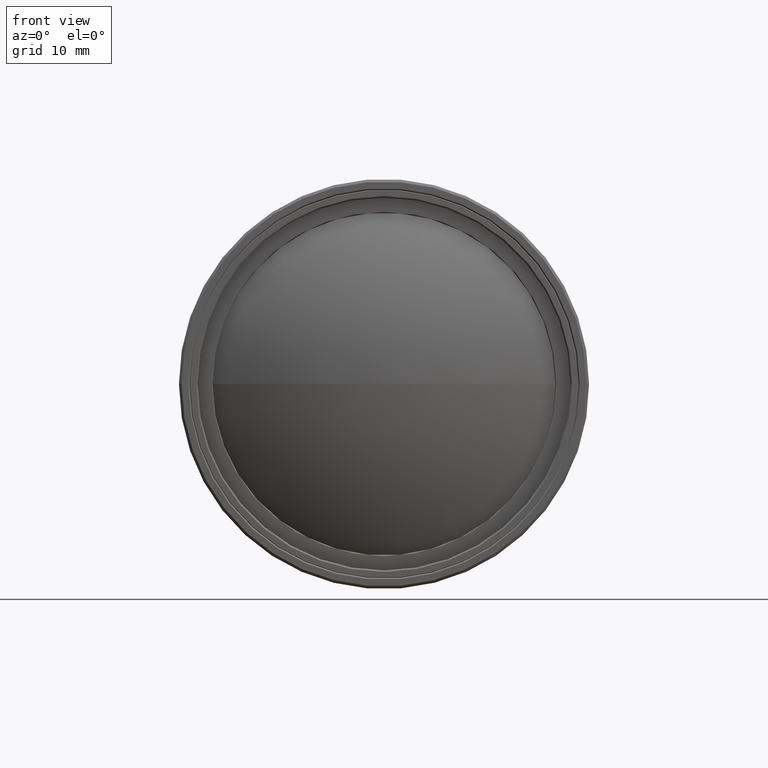
[diagram: clean part render]
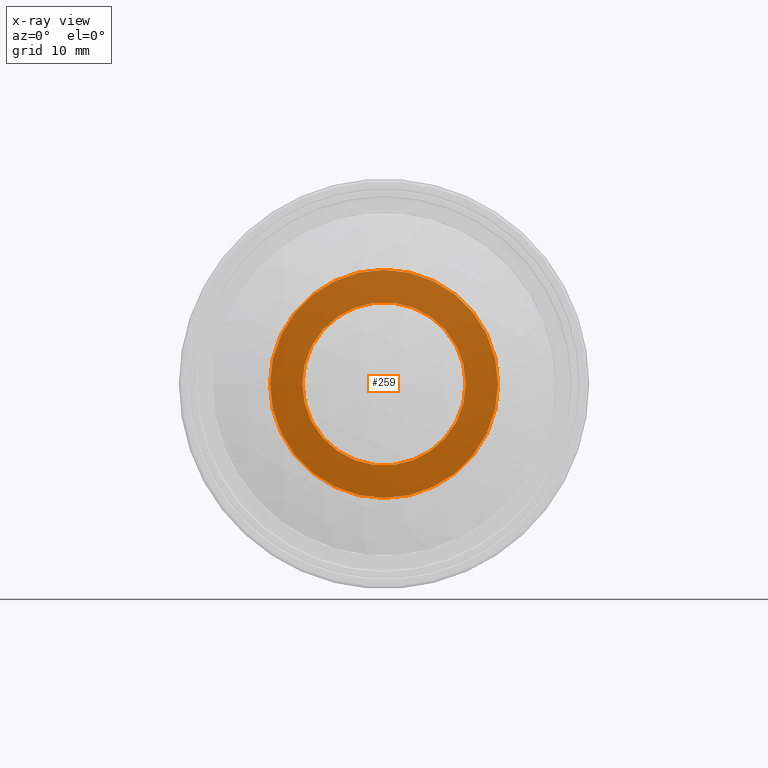
[diagram: x-ray — body ghosted, one internal face saturated and labeled with its STEP entity id]
A machine part, front view, then the same camera in x-ray: the body is ghosted and one INTERNAL B-rep face — a face not visible from any outside direction — is saturated and labeled: STEP entity #259.
In plain terms, the highlighted planar face has unit normal (-0, 1, 0).
Its self-contained STEP definition (entity closure, byte-faithful):
#259=ADVANCED_FACE('0:10512',(#728,#729),#730,.T.);
#728=FACE_BOUND('',#1381,.T.);
#729=FACE_OUTER_BOUND('',#1382,.T.);
#730=PLANE('',#1383);
#1381=EDGE_LOOP('',(#2841,#2842));
#1382=EDGE_LOOP('',(#2843,#2844));
#1383=AXIS2_PLACEMENT_3D('',#2845,#2846,#2847);
#2841=ORIENTED_EDGE('',*,*,#4152,.T.);
#2842=ORIENTED_EDGE('',*,*,#4291,.T.);
#2843=ORIENTED_EDGE('',*,*,#4290,.F.);
#2844=ORIENTED_EDGE('',*,*,#4155,.F.);
#2845=CARTESIAN_POINT('',(0.012475,-0.00782474679709592,0.0));
#2846=DIRECTION('',(-3.26943875618435E-15,1.0,0.0));
#2847=DIRECTION('',(-1.0,-3.26943875618435E-15,0.0));
#4152=EDGE_CURVE('0:10525',#5104,#5102,#5105,.T.);
#4155=EDGE_CURVE('0:611',#5107,#5110,#5111,.T.);
#4290=EDGE_CURVE('0:611',#5110,#5107,#5321,.T.);
#4291=EDGE_CURVE('0:10525',#5102,#5104,#5322,.T.);
#5102=VERTEX_POINT('',#6786);
#5104=VERTEX_POINT('',#6789);
#5105=CIRCLE('',#6790,0.0109505375327125);
#5107=VERTEX_POINT('',#6793);
#5110=VERTEX_POINT('NONE',#6797);
#5111=CIRCLE('',#6798,0.0153);
#5321=CIRCLE('',#7063,0.0153);
#5322=CIRCLE('',#7064,0.0109505375327125);
#6786=CARTESIAN_POINT('',(0.0109505375327125,-0.00782474679709592,-1.34105407383793E-18));
#6789=CARTESIAN_POINT('',(-0.0109505375327125,-0.007824746797096,-1.34105407383793E-18));
#6790=AXIS2_PLACEMENT_3D('',#8061,#8062,#8063);
#6793=CARTESIAN_POINT('',(0.0153,-0.00782474679709591,1.87370960269545E-18));
#6797=CARTESIAN_POINT('',(-0.0153,-0.00782474679709601,1.88595607068692E-18));
#6798=AXIS2_PLACEMENT_3D('',#8066,#8067,#8068);
#7063=AXIS2_PLACEMENT_3D('',#8361,#8362,#8363);
#7064=AXIS2_PLACEMENT_3D('',#8364,#8365,#8366);
#8061=CARTESIAN_POINT('',(2.08166817117217E-17,-0.00782474679709596,0.0));
#8062=DIRECTION('',(3.26943875618435E-15,-1.0,0.0));
#8063=DIRECTION('',(1.0,3.26943875618435E-15,0.0));
#8066=CARTESIAN_POINT('',(2.08166817117217E-17,-0.00782474679709596,0.0));
#8067=DIRECTION('',(3.26943875618435E-15,-1.0,0.0));
#8068=DIRECTION('',(1.0,3.26943875618435E-15,0.0));
#8361=CARTESIAN_POINT('',(2.08166817117217E-17,-0.00782474679709596,0.0));
#8362=DIRECTION('',(3.26943875618435E-15,-1.0,0.0));
#8363=DIRECTION('',(1.0,3.26943875618435E-15,0.0));
#8364=CARTESIAN_POINT('',(2.08166817117217E-17,-0.00782474679709596,0.0));
#8365=DIRECTION('',(3.26943875618435E-15,-1.0,0.0));
#8366=DIRECTION('',(1.0,3.26943875618435E-15,0.0));